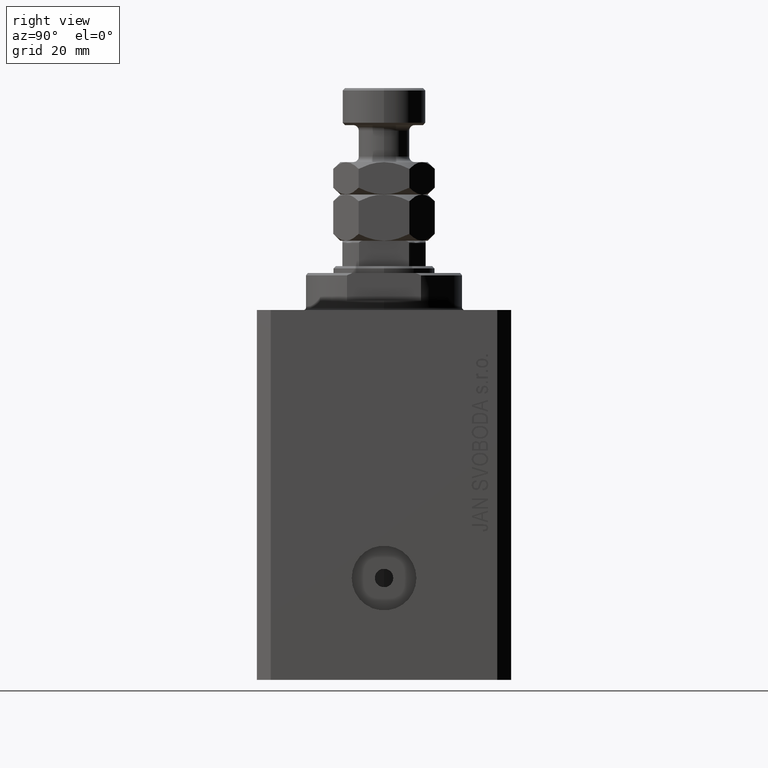
[diagram: clean part render]
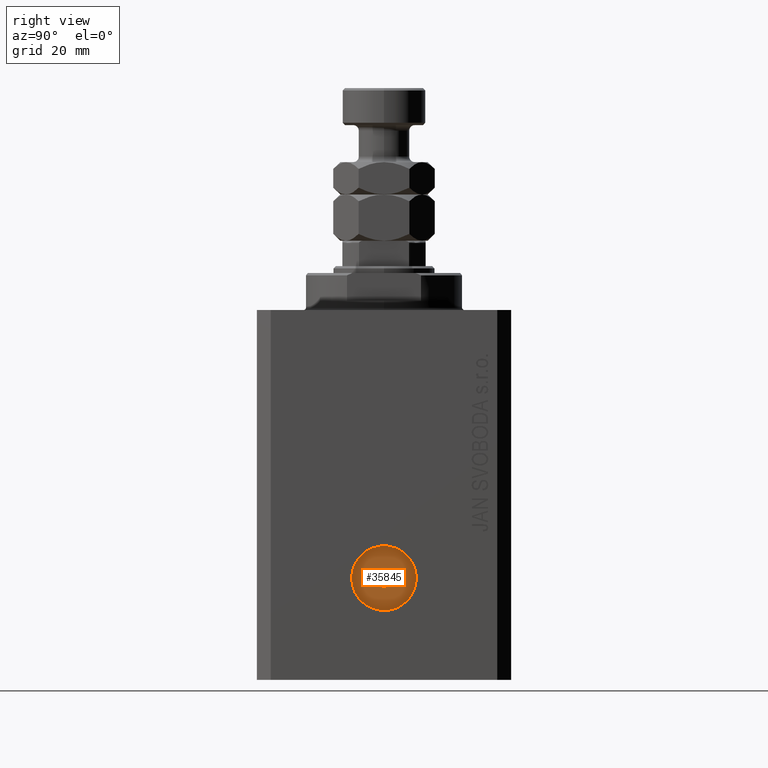
[diagram: same view with one face highlighted and labeled with its STEP entity id]
A machine part, right view. The second image highlights one B-rep face of the part: STEP entity #35845.
In plain terms, the highlighted planar face has unit normal (1, -0, 0).
Its self-contained STEP definition (entity closure, byte-faithful):
#2860 = CIRCLE ( 'NONE', #37112, 2.000000000000003109 ) ;
#3501 = ORIENTED_EDGE ( 'NONE', *, *, #27130, .T. ) ;
#4804 = CARTESIAN_POINT ( 'NONE',  ( 33.00000000000025580, 7.279302749271440798E-14, -58.00000000000000000 ) ) ;
#5174 = VERTEX_POINT ( 'NONE', #44943 ) ;
#6665 = DIRECTION ( 'NONE',  ( 1.000000000000000000, -1.334402673828349134E-14, 0.000000000000000000 ) ) ;
#7370 = AXIS2_PLACEMENT_3D ( 'NONE', #18084, #6665, #42801 ) ;
#7567 = CARTESIAN_POINT ( 'NONE',  ( 33.00000000000025580, 7.279302749271437011E-14, -58.00000000000000000 ) ) ;
#9814 = ORIENTED_EDGE ( 'NONE', *, *, #13004, .F. ) ;
#10601 = DIRECTION ( 'NONE',  ( 1.000000000000000000, -1.334402673828349134E-14, 0.000000000000000000 ) ) ;
#10737 = ORIENTED_EDGE ( 'NONE', *, *, #14415, .T. ) ;
#11569 = DIRECTION ( 'NONE',  ( 1.288651725011343653E-14, 1.000000000000000000, 0.000000000000000000 ) ) ;
#12911 = CARTESIAN_POINT ( 'NONE',  ( 33.00000000000025580, 7.279302749271440798E-14, -58.00000000000000000 ) ) ;
#13004 = EDGE_CURVE ( 'NONE', #17529, #5174, #2860, .T. ) ;
#13888 = FACE_BOUND ( 'NONE', #20526, .T. ) ;
#14415 = EDGE_CURVE ( 'NONE', #28363, #35047, #43108, .T. ) ;
#15179 = CARTESIAN_POINT ( 'NONE',  ( 33.00000000000025580, 7.279302749271437011E-14, -58.00000000000000000 ) ) ;
#17090 = EDGE_LOOP ( 'NONE', ( #10737, #3501 ) ) ;
#17529 = VERTEX_POINT ( 'NONE', #27226 ) ;
#18084 = CARTESIAN_POINT ( 'NONE',  ( 33.00000000000025580, 7.279302749271440798E-14, -58.00000000000000000 ) ) ;
#20526 = EDGE_LOOP ( 'NONE', ( #9814, #33899 ) ) ;
#20912 = AXIS2_PLACEMENT_3D ( 'NONE', #15179, #36166, #43619 ) ;
#21595 = FACE_OUTER_BOUND ( 'NONE', #17090, .T. ) ;
#22067 = DIRECTION ( 'NONE',  ( 1.000000000000000000, -1.334402673828349134E-14, 0.000000000000000000 ) ) ;
#22867 = CARTESIAN_POINT ( 'NONE',  ( 33.00000000000034817, 7.000000000000065725, -58.00000000000000000 ) ) ;
#23635 = DIRECTION ( 'NONE',  ( 1.288651725011343653E-14, 1.000000000000000000, 0.000000000000000000 ) ) ;
#24488 = AXIS2_PLACEMENT_3D ( 'NONE', #4804, #22067, #11569 ) ;
#24864 = CARTESIAN_POINT ( 'NONE',  ( 33.00000000000017053, -6.999999999999920064, -58.00000000000000000 ) ) ;
#26879 = CIRCLE ( 'NONE', #44742, 6.999999999999992895 ) ;
#27130 = EDGE_CURVE ( 'NONE', #35047, #28363, #26879, .T. ) ;
#27152 = DIRECTION ( 'NONE',  ( 1.000000000000000000, -1.334402673828349134E-14, 0.000000000000000000 ) ) ;
#27226 = CARTESIAN_POINT ( 'NONE',  ( 33.00000000000028422, 2.000000000000075939, -58.00000000000000000 ) ) ;
#28348 = EDGE_CURVE ( 'NONE', #5174, #17529, #41039, .T. ) ;
#28363 = VERTEX_POINT ( 'NONE', #22867 ) ;
#32518 = DIRECTION ( 'NONE',  ( 1.387778780781443467E-14, 1.000000000000000000, 0.000000000000000000 ) ) ;
#33899 = ORIENTED_EDGE ( 'NONE', *, *, #28348, .F. ) ;
#35047 = VERTEX_POINT ( 'NONE', #24864 ) ;
#35845 = ADVANCED_FACE ( 'NONE', ( #13888, #21595 ), #42580, .T. ) ;
#36166 = DIRECTION ( 'NONE',  ( 1.000000000000000000, -1.334402673828349134E-14, 0.000000000000000000 ) ) ;
#37112 = AXIS2_PLACEMENT_3D ( 'NONE', #7567, #10601, #32518 ) ;
#41039 = CIRCLE ( 'NONE', #20912, 2.000000000000003109 ) ;
#42580 = PLANE ( 'NONE',  #7370 ) ;
#42801 = DIRECTION ( 'NONE',  ( 1.334402673828349134E-14, 1.000000000000000000, 0.000000000000000000 ) ) ;
#43108 = CIRCLE ( 'NONE', #24488, 6.999999999999992895 ) ;
#43619 = DIRECTION ( 'NONE',  ( 1.387778780781443467E-14, 1.000000000000000000, 0.000000000000000000 ) ) ;
#44742 = AXIS2_PLACEMENT_3D ( 'NONE', #12911, #27152, #23635 ) ;
#44943 = CARTESIAN_POINT ( 'NONE',  ( 33.00000000000022737, -1.999999999999930278, -58.00000000000000000 ) ) ;